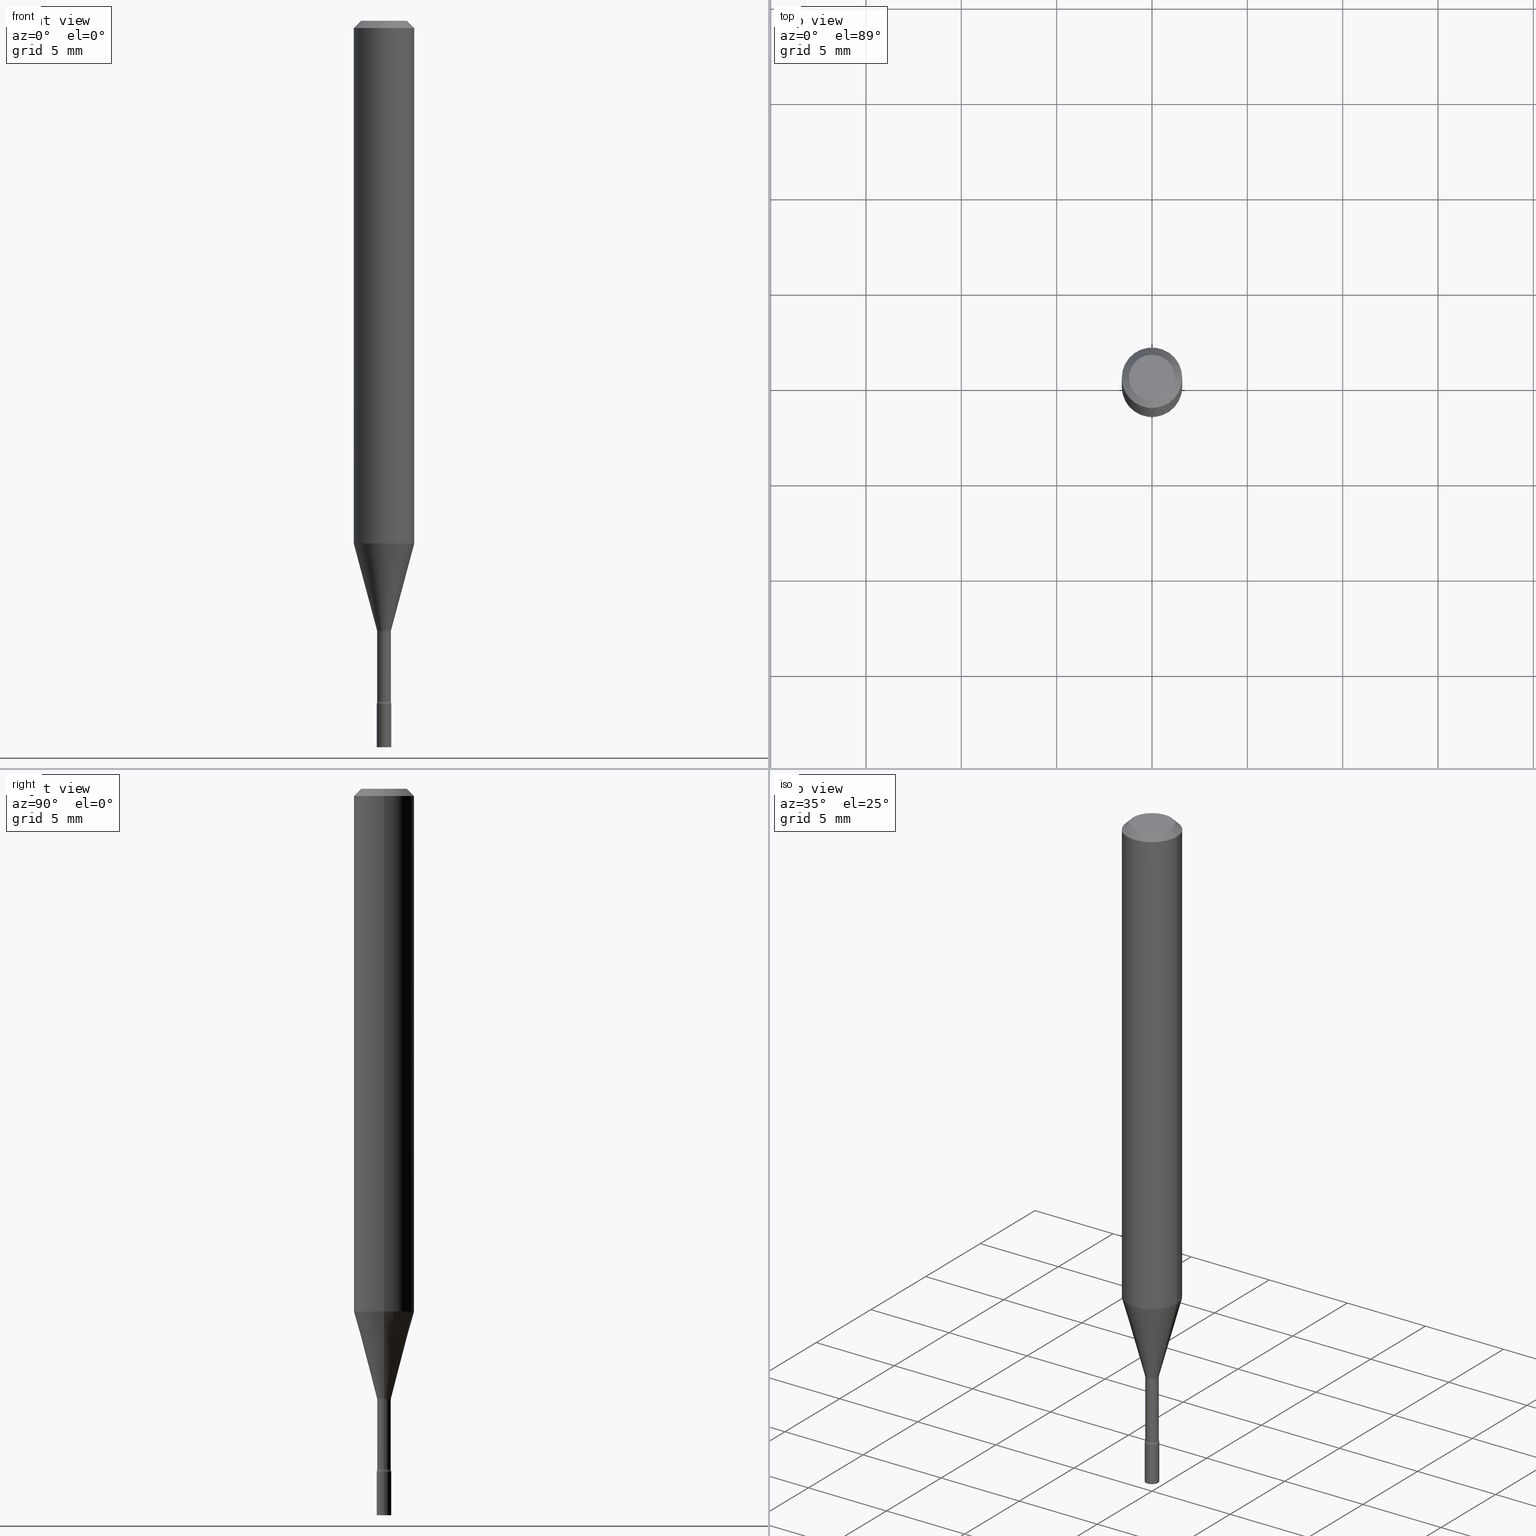
[diagram: canonical four-view strip — front | top / right | iso, engineering-drawing reading convention]
A machine part, canonical four-view strip (front | top / right | iso — engineering-drawing reading convention). The complete STEP part file that produces these views, byte-faithful:
ISO-10303-21;
HEADER;
FILE_DESCRIPTION (( 'STEP AP203' ),
    '1' );
FILE_NAME ('09361.STEP',
    '2024-03-08T23:20:44',
    ( '' ),
    ( '' ),
    'SwSTEP 2.0',
    'SolidWorks 2023',
    '' );
FILE_SCHEMA (( 'CONFIG_CONTROL_DESIGN' ));
ENDSEC;

DATA;
#1 = DIRECTION ( 'NONE',  ( 1.000000000000000000, -6.982962677686267499E-15, 4.876176775795936353E-29 ) ) ;
#2 = PERSON_AND_ORGANIZATION ( #91, #43 ) ;
#3 = CC_DESIGN_DATE_AND_TIME_ASSIGNMENT ( #175, #418, ( #183 ) ) ;
#4 = DIRECTION ( 'NONE',  ( -1.000000000000000000, 6.982962677686266711E-15, 0.000000000000000000 ) ) ;
#5 = DIRECTION ( 'NONE',  ( 1.000000000000000000, -6.982962677686268288E-15, 0.000000000000000000 ) ) ;
#6 = AXIS2_PLACEMENT_3D ( 'NONE', #491, #177, #458 ) ;
#7 = AXIS2_PLACEMENT_3D ( 'NONE', #433, #67, #205 ) ;
#8 = LINE ( 'NONE', #221, #448 ) ;
#9 = EDGE_CURVE ( 'NONE', #19, #154, #163, .T. ) ;
#10 = CARTESIAN_POINT ( 'NONE',  ( -0.02910000000000001821, -4.698352688689978751E-15, -1.404882383367230592 ) ) ;
#11 = EDGE_LOOP ( 'NONE', ( #385, #139 ) ) ;
#12 = AXIS2_PLACEMENT_3D ( 'NONE', #364, #518, #119 ) ;
#13 = LOCAL_TIME ( 18, 20, 44.00000000000000000, #86 ) ;
#14 = CARTESIAN_POINT ( 'NONE',  ( 0.000000000000000000, 0.000000000000000000, 0.000000000000000000 ) ) ;
#15 = CARTESIAN_POINT ( 'NONE',  ( 1.047444401653284739E-16, 0.01499999999999507630, -1.409999999999999920 ) ) ;
#16 = ORIENTED_EDGE ( 'NONE', *, *, #251, .F. ) ;
#17 = CYLINDRICAL_SURFACE ( 'NONE', #475, 0.06250000000000000000 ) ;
#18 = EDGE_CURVE ( 'NONE', #154, #515, #260, .T. ) ;
#19 = VERTEX_POINT ( 'NONE', #125 ) ;
#20 = CONICAL_SURFACE ( 'NONE', #295, 0.01461111260566397979, 0.2617993877991497964 ) ;
#21 = DIRECTION ( 'NONE',  ( 2.438088387897960049E-29, -3.491481338843145188E-15, -1.000000000000000000 ) ) ;
#22 = ORIENTED_EDGE ( 'NONE', *, *, #66, .F. ) ;
#23 = DIRECTION ( 'NONE',  ( -2.445468806185136597E-29, 3.491481338843145583E-15, 1.000000000000000000 ) ) ;
#24 = CARTESIAN_POINT ( 'NONE',  ( 3.668203209277712094E-31, -5.237222008264728876E-17, -0.01500000000000003067 ) ) ;
#25 = AXIS2_PLACEMENT_3D ( 'NONE', #202, #165, #516 ) ;
#26 = DIRECTION ( 'NONE',  ( -2.445468806185136597E-29, 3.491481338843145583E-15, 1.000000000000000000 ) ) ;
#27 = LOCAL_TIME ( 18, 20, 44.00000000000000000, #446 ) ;
#28 = ORIENTED_EDGE ( 'NONE', *, *, #514, .F. ) ;
#29 = CARTESIAN_POINT ( 'NONE',  ( 3.448111016721042669E-29, -4.922988687768835701E-15, -1.409999999999999920 ) ) ;
#30 = ORIENTED_EDGE ( 'NONE', *, *, #171, .F. ) ;
#31 = DIRECTION ( 'NONE',  ( 1.000000000000000000, 0.000000000000000000, 0.000000000000000000 ) ) ;
#32 = DIRECTION ( 'NONE',  ( 7.105427357601001859E-15, 1.000000000000000000, -3.491481338843145583E-15 ) ) ;
#33 = ORIENTED_EDGE ( 'NONE', *, *, #200, .T. ) ;
#34 = ADVANCED_FACE ( 'NONE', ( #492 ), #218, .T. ) ;
#35 = AXIS2_PLACEMENT_3D ( 'NONE', #45, #256, #50 ) ;
#36 = DIRECTION ( 'NONE',  ( 1.000000000000000000, -6.982962677686276966E-15, 0.000000000000000000 ) ) ;
#37 = CIRCLE ( 'NONE', #193, 0.04749999999999999362 ) ;
#38 = ORIENTED_EDGE ( 'NONE', *, *, #497, .T. ) ;
#39 = DATE_AND_TIME ( #249, #27 ) ;
#40 = CYLINDRICAL_SURFACE ( 'NONE', #250, 0.01499999999999999944 ) ;
#41 = DIRECTION ( 'NONE',  ( 1.000000000000000000, -6.982962677686246200E-15, 0.000000000000000000 ) ) ;
#42 = FACE_OUTER_BOUND ( 'NONE', #508, .T. ) ;
#43 = ORGANIZATION ( 'UNSPECIFIED', 'UNSPECIFIED', '' ) ;
#44 = DATE_TIME_ROLE ( 'classification_date' ) ;
#45 = CARTESIAN_POINT ( 'NONE',  ( 3.448111016721042669E-29, -4.922988687768835701E-15, -1.409999999999999920 ) ) ;
#46 = PERSON_AND_ORGANIZATION ( #91, #43 ) ;
#47 = CARTESIAN_POINT ( 'NONE',  ( 0.06250000000000000000, -4.811533449433680977E-16, -0.01500000000000003067 ) ) ;
#48 = CALENDAR_DATE ( 2024, 8, 3 ) ;
#49 = PRODUCT ( '09361', '09361', '', ( #406 ) ) ;
#50 = DIRECTION ( 'NONE',  ( 1.000000000000000000, -6.982962677686265922E-15, 4.876176775795935793E-29 ) ) ;
#51 = MANIFOLD_SOLID_BREP ( 'Body-Move/Copy2[1]', #172 ) ;
#52 = AXIS2_PLACEMENT_3D ( 'NONE', #146, #469, #263 ) ;
#53 = VERTEX_POINT ( 'NONE', #464 ) ;
#54 = CIRCLE ( 'NONE', #387, 0.01499999999999999944 ) ;
#55 = EDGE_CURVE ( 'NONE', #304, #316, #8, .T. ) ;
#56 = DIRECTION ( 'NONE',  ( 7.105427357601001859E-15, 1.000000000000000000, -3.491481338843145583E-15 ) ) ;
#57 = DIRECTION ( 'NONE',  ( -1.000000000000000000, 6.982962677686266711E-15, 0.000000000000000000 ) ) ;
#58 = ORIENTED_EDGE ( 'NONE', *, *, #367, .F. ) ;
#59 = EDGE_LOOP ( 'NONE', ( #470, #297, #336, #112 ) ) ;
#60 = ORIENTED_EDGE ( 'NONE', *, *, #490, .T. ) ;
#61 = CIRCLE ( 'NONE', #350, 0.01499999999999999944 ) ;
#62 = DIRECTION ( 'NONE',  ( 1.000000000000000000, -6.982962677686268288E-15, 0.000000000000000000 ) ) ;
#63 = EDGE_LOOP ( 'NONE', ( #301, #28, #459, #68 ) ) ;
#64 = DIRECTION ( 'NONE',  ( 1.000000000000000000, -6.982962677686268288E-15, 0.000000000000000000 ) ) ;
#65 = ORIENTED_EDGE ( 'NONE', *, *, #18, .F. ) ;
#66 = EDGE_CURVE ( 'NONE', #178, #285, #192, .T. ) ;
#67 = DIRECTION ( 'NONE',  ( -2.445468806185136597E-29, 3.491481338843145583E-15, 1.000000000000000000 ) ) ;
#68 = ORIENTED_EDGE ( 'NONE', *, *, #367, .T. ) ;
#69 = CIRCLE ( 'NONE', #100, 0.01499999999999999944 ) ;
#70 = LINE ( 'NONE', #361, #449 ) ;
#71 = TOROIDAL_SURFACE ( 'NONE', #461, 0.02909999999999999740, 0.01500000000000002373 ) ;
#72 = DIRECTION ( 'NONE',  ( 2.445468806185136597E-29, -3.491481338843145583E-15, -1.000000000000000000 ) ) ;
#73 = VERTEX_POINT ( 'NONE', #380 ) ;
#74 = DIRECTION ( 'NONE',  ( -2.445468806185136597E-29, 3.491481338843145583E-15, 1.000000000000000000 ) ) ;
#75 = ORIENTED_EDGE ( 'NONE', *, *, #151, .F. ) ;
#76 = PERSON_AND_ORGANIZATION ( #91, #43 ) ;
#77 = LINE ( 'NONE', #150, #309 ) ;
#78 = VERTEX_POINT ( 'NONE', #220 ) ;
#79 = VECTOR ( 'NONE', #133, 39.37007874015748143 ) ;
#80 = CARTESIAN_POINT ( 'NONE',  ( 0.000000000000000000, 0.000000000000000000, 0.000000000000000000 ) ) ;
#81 = CIRCLE ( 'NONE', #217, 0.01499999999999998036 ) ;
#82 = CARTESIAN_POINT ( 'NONE',  ( 0.000000000000000000, 0.000000000000000000, 0.000000000000000000 ) ) ;
#83 = APPROVAL ( #219, 'UNSPECIFIED' ) ;
#84 = LINE ( 'NONE', #47, #79 ) ;
#85 = VECTOR ( 'NONE', #472, 39.37007874015748143 ) ;
#86 = COORDINATED_UNIVERSAL_TIME_OFFSET ( 5, 0, .BEHIND. ) ;
#87 = DIRECTION ( 'NONE',  ( 1.000000000000000000, -6.982962677686246200E-15, 0.000000000000000000 ) ) ;
#88 = EDGE_CURVE ( 'NONE', #439, #381, #318, .T. ) ;
#89 = CYLINDRICAL_SURFACE ( 'NONE', #6, 0.01410000000000002050 ) ;
#90 = CC_DESIGN_PERSON_AND_ORGANIZATION_ASSIGNMENT ( #2, #413, ( #183 ) ) ;
#91 = PERSON ( 'UNSPECIFIED', 'UNSPECIFIED', 'UNSPECIFIED', ('UNSPECIFIED'), ('UNSPECIFIED'), ('UNSPECIFIED') ) ;
#92 = DIRECTION ( 'NONE',  ( -2.445468806185136877E-29, 3.491481338843145188E-15, 1.000000000000000000 ) ) ;
#93 = CONICAL_SURFACE ( 'NONE', #455, 0.06250000000000000000, 0.7853981633974483900 ) ;
#94 = APPROVAL ( #129, 'UNSPECIFIED' ) ;
#95 = FACE_OUTER_BOUND ( 'NONE', #359, .T. ) ;
#96 = ORIENTED_EDGE ( 'NONE', *, *, #261, .F. ) ;
#97 = DIRECTION ( 'NONE',  ( 1.000000000000000000, -6.982962677686258033E-15, 4.883557194083110098E-29 ) ) ;
#98 = EDGE_LOOP ( 'NONE', ( #228, #229, #186, #103 ) ) ;
#99 = CARTESIAN_POINT ( 'NONE',  ( 0.01410000000000002050, -9.845977375537649906E-17, 6.875409253872279620E-31 ) ) ;
#100 = AXIS2_PLACEMENT_3D ( 'NONE', #414, #394, #62 ) ;
#101 = CIRCLE ( 'NONE', #436, 0.01500000000000001853 ) ;
#102 = FACE_OUTER_BOUND ( 'NONE', #137, .T. ) ;
#103 = ORIENTED_EDGE ( 'NONE', *, *, #490, .F. ) ;
#104 = CARTESIAN_POINT ( 'NONE',  ( 3.435596044883590272E-29, -4.905120624796168010E-15, -1.404882383367230592 ) ) ;
#105 = VERTEX_POINT ( 'NONE', #335 ) ;
#106 =( NAMED_UNIT ( * ) SI_UNIT ( $, .STERADIAN. ) SOLID_ANGLE_UNIT ( ) );
#107 = CARTESIAN_POINT ( 'NONE',  ( 3.448111016721042669E-29, -4.922988687768835701E-15, -1.409999999999999920 ) ) ;
#108 = ORIENTED_EDGE ( 'NONE', *, *, #392, .F. ) ;
#109 = AXIS2_PLACEMENT_3D ( 'NONE', #191, #21, #187 ) ;
#110 = APPROVAL_PERSON_ORGANIZATION ( #46, #83, #291 ) ;
#111 = FACE_OUTER_BOUND ( 'NONE', #488, .T. ) ;
#112 = ORIENTED_EDGE ( 'NONE', *, *, #391, .F. ) ;
#113 = APPLICATION_PROTOCOL_DEFINITION ( 'international standard', 'config_control_design', 1994, #487 ) ;
#114 = ADVANCED_FACE ( 'NONE', ( #95 ), #496, .T. ) ;
#115 = DIRECTION ( 'NONE',  ( -2.445468806185136597E-29, 3.491481338843145583E-15, 1.000000000000000000 ) ) ;
#116 = EDGE_LOOP ( 'NONE', ( #155, #142, #149, #65 ) ) ;
#117 = DIRECTION ( 'NONE',  ( -0.2588190451025211281, 5.211531920934548675E-15, 0.9659258262890682012 ) ) ;
#118 = APPROVAL_DATE_TIME ( #292, #94 ) ;
#119 = DIRECTION ( 'NONE',  ( -1.000000000000000000, 6.982962677686265922E-15, -4.876176775795935793E-29 ) ) ;
#120 = AXIS2_PLACEMENT_3D ( 'NONE', #158, #352, #397 ) ;
#121 = SECURITY_CLASSIFICATION ( '', '', #215 ) ;
#122 = COORDINATED_UNIVERSAL_TIME_OFFSET ( 5, 0, .BEHIND. ) ;
#123 = PERSON_AND_ORGANIZATION ( #91, #43 ) ;
#124 = ORIENTED_EDGE ( 'NONE', *, *, #306, .F. ) ;
#125 = CARTESIAN_POINT ( 'NONE',  ( 0.04749999999999999362, -4.035134999187579609E-16, -2.891391092786643317E-17 ) ) ;
#126 = EDGE_CURVE ( 'NONE', #19, #78, #84, .T. ) ;
#127 = CARTESIAN_POINT ( 'NONE',  ( -0.06250000000000000000, 3.840629472727443437E-16, -0.01500000000000003067 ) ) ;
#128 = CIRCLE ( 'NONE', #405, 0.01499999999999999944 ) ;
#129 = APPROVAL_STATUS ( 'not_yet_approved' ) ;
#130 = ADVANCED_FACE ( 'NONE', ( #257 ), #227, .F. ) ;
#131 = VERTEX_POINT ( 'NONE', #457 ) ;
#132 = DIRECTION ( 'NONE',  ( 1.000000000000000000, -6.982962677686266711E-15, 4.876176775795935793E-29 ) ) ;
#133 = DIRECTION ( 'NONE',  ( 0.7071067811865475727, -7.319954787623256045E-15, -0.7071067811865474617 ) ) ;
#134 = CARTESIAN_POINT ( 'NONE',  ( -0.06250000000000000000, 4.440892098500626162E-16, -3.074334431409316114E-30 ) ) ;
#135 = VECTOR ( 'NONE', #329, 39.37007874015748143 ) ;
#136 = AXIS2_PLACEMENT_3D ( 'NONE', #303, #74, #435 ) ;
#137 = EDGE_LOOP ( 'NONE', ( #498, #239, #38, #345 ) ) ;
#138 = DIRECTION ( 'NONE',  ( -2.445468806185136597E-29, 3.491481338843145583E-15, 1.000000000000000000 ) ) ;
#139 = ORIENTED_EDGE ( 'NONE', *, *, #9, .T. ) ;
#140 = DIRECTION ( 'NONE',  ( 1.000000000000000000, -6.982962677686266711E-15, 4.876176775795935793E-29 ) ) ;
#141 = DIRECTION ( 'NONE',  ( 1.000000000000000000, -6.982962677686260400E-15, 4.883557194083110659E-29 ) ) ;
#142 = ORIENTED_EDGE ( 'NONE', *, *, #126, .T. ) ;
#143 = DESIGN_CONTEXT ( 'detailed design', #487, 'design' ) ;
#144 = AXIS2_PLACEMENT_3D ( 'NONE', #343, #23, #468 ) ;
#145 = PRODUCT_DEFINITION_FORMATION_WITH_SPECIFIED_SOURCE ( 'ANY', '', #49, .NOT_KNOWN. ) ;
#146 = CARTESIAN_POINT ( 'NONE',  ( 3.435596044883591393E-29, -4.905120624796168799E-15, -1.404882383367230814 ) ) ;
#147 = ORIENTED_EDGE ( 'NONE', *, *, #306, .T. ) ;
#148 = DIRECTION ( 'NONE',  ( -2.445468806185136597E-29, 3.491481338843145583E-15, 1.000000000000000000 ) ) ;
#149 = ORIENTED_EDGE ( 'NONE', *, *, #485, .T. ) ;
#150 = CARTESIAN_POINT ( 'NONE',  ( -0.01461111260566397979, -4.288788293295477803E-15, -1.258092501787273276 ) ) ;
#151 = EDGE_CURVE ( 'NONE', #53, #304, #509, .T. ) ;
#152 = PERSON_AND_ORGANIZATION_ROLE ( 'design_owner' ) ;
#153 = CARTESIAN_POINT ( 'NONE',  ( 3.668203209277712094E-31, -5.237222008264728876E-17, -0.01500000000000003067 ) ) ;
#154 = VERTEX_POINT ( 'NONE', #375 ) ;
#155 = ORIENTED_EDGE ( 'NONE', *, *, #9, .F. ) ;
#156 = DIRECTION ( 'NONE',  ( -2.445468806185136877E-29, 3.491481338843145188E-15, 1.000000000000000000 ) ) ;
#157 = CARTESIAN_POINT ( 'NONE',  ( 0.06250000000000001388, -4.205030983986081256E-15, -1.079368740913666747 ) ) ;
#158 = CARTESIAN_POINT ( 'NONE',  ( 0.02909999999999999740, -4.609365634441111959E-15, -1.261974787463811198 ) ) ;
#159 = DIRECTION ( 'NONE',  ( -2.445468806185136597E-29, 3.491481338843145583E-15, 1.000000000000000000 ) ) ;
#160 = EDGE_CURVE ( 'NONE', #53, #73, #173, .T. ) ;
#161 = ADVANCED_FACE ( 'NONE', ( #42 ), #89, .T. ) ;
#162 = CALENDAR_DATE ( 2024, 8, 3 ) ;
#163 = CIRCLE ( 'NONE', #395, 0.04749999999999999362 ) ;
#164 = VECTOR ( 'NONE', #511, 39.37007874015748143 ) ;
#165 = DIRECTION ( 'NONE',  ( -2.445468806185136597E-29, 3.491481338843145583E-15, 1.000000000000000000 ) ) ;
#166 =( GEOMETRIC_REPRESENTATION_CONTEXT ( 3 ) GLOBAL_UNCERTAINTY_ASSIGNED_CONTEXT ( ( #370 ) ) GLOBAL_UNIT_ASSIGNED_CONTEXT ( ( #471, #197, #106 ) ) REPRESENTATION_CONTEXT ( 'NONE', 'WORKASPACE' ) );
#167 = DIRECTION ( 'NONE',  ( -2.445468806185136597E-29, 3.491481338843145583E-15, 1.000000000000000000 ) ) ;
#168 = SHAPE_DEFINITION_REPRESENTATION ( #179, #445 ) ;
#169 = DIRECTION ( 'NONE',  ( 1.000000000000000000, -6.982962677686267499E-15, 4.876681293081646444E-29 ) ) ;
#170 = COORDINATED_UNIVERSAL_TIME_OFFSET ( 5, 0, .BEHIND. ) ;
#171 = EDGE_CURVE ( 'NONE', #506, #515, #293, .T. ) ;
#172 = CLOSED_SHELL ( 'NONE', ( #373, #114, #429, #453 ) ) ;
#173 = LINE ( 'NONE', #410, #181 ) ;
#174 = CONICAL_SURFACE ( 'NONE', #426, 0.01461111260566397979, 0.2617993877991497964 ) ;
#175 = DATE_AND_TIME ( #259, #206 ) ;
#176 = EDGE_LOOP ( 'NONE', ( #355, #246, #310, #16 ) ) ;
#177 = DIRECTION ( 'NONE',  ( -2.445468806185136597E-29, 3.491481338843145583E-15, 1.000000000000000000 ) ) ;
#178 = VERTEX_POINT ( 'NONE', #300 ) ;
#179 = PRODUCT_DEFINITION_SHAPE ( 'NONE', 'NONE',  #183 ) ;
#180 = FACE_OUTER_BOUND ( 'NONE', #431, .T. ) ;
#181 = VECTOR ( 'NONE', #92, 39.37007874015748143 ) ;
#182 = CIRCLE ( 'NONE', #144, 0.01461111260566397979 ) ;
#183 = PRODUCT_DEFINITION ( 'UNKNOWN', '', #145, #143 ) ;
#184 = VERTEX_POINT ( 'NONE', #454 ) ;
#185 = DIMENSIONAL_EXPONENTS ( 1.000000000000000000, 0.000000000000000000, 0.000000000000000000, 0.000000000000000000, 0.000000000000000000, 0.000000000000000000, 0.000000000000000000 ) ;
#186 = ORIENTED_EDGE ( 'NONE', *, *, #485, .F. ) ;
#187 = DIRECTION ( 'NONE',  ( -1.000000000000000000, 6.982962677686265922E-15, -4.876176775795935793E-29 ) ) ;
#188 = EDGE_LOOP ( 'NONE', ( #390, #75 ) ) ;
#189 = ORIENTED_EDGE ( 'NONE', *, *, #415, .F. ) ;
#190 = LINE ( 'NONE', #466, #164 ) ;
#191 = CARTESIAN_POINT ( 'NONE',  ( 3.316907271900976096E-16, 0.04749999999999999362, -1.803023190589839165E-16 ) ) ;
#192 = CIRCLE ( 'NONE', #238, 0.01461111260566397979 ) ;
#193 = AXIS2_PLACEMENT_3D ( 'NONE', #363, #476, #517 ) ;
#194 = LENGTH_MEASURE_WITH_UNIT ( LENGTH_MEASURE( 0.02539999999999999897 ), #275 );
#195 = DIRECTION ( 'NONE',  ( -2.445468806185136597E-29, 3.491481338843145583E-15, 1.000000000000000000 ) ) ;
#196 = EDGE_LOOP ( 'NONE', ( #495, #108, #264, #199 ) ) ;
#197 =( NAMED_UNIT ( * ) PLANE_ANGLE_UNIT ( ) SI_UNIT ( $, .RADIAN. ) );
#198 = FACE_OUTER_BOUND ( 'NONE', #116, .T. ) ;
#199 = ORIENTED_EDGE ( 'NONE', *, *, #357, .T. ) ;
#200 = EDGE_CURVE ( 'NONE', #381, #351, #69, .T. ) ;
#201 = APPLICATION_PROTOCOL_DEFINITION ( 'international standard', 'config_control_design', 1994, #305 ) ;
#202 = CARTESIAN_POINT ( 'NONE',  ( 2.639562586275698746E-29, -3.768595816630689586E-15, -1.079368740913666747 ) ) ;
#203 = ORIENTED_EDGE ( 'NONE', *, *, #151, .T. ) ;
#204 = AXIS2_PLACEMENT_3D ( 'NONE', #14, #419, #262 ) ;
#205 = DIRECTION ( 'NONE',  ( 1.000000000000000000, -6.982962677686266711E-15, 0.000000000000000000 ) ) ;
#206 = LOCAL_TIME ( 18, 20, 44.00000000000000000, #122 ) ;
#207 = DIRECTION ( 'NONE',  ( -2.445468806185136597E-29, 3.491481338843145583E-15, 1.000000000000000000 ) ) ;
#208 = APPROVAL_DATE_TIME ( #39, #299 ) ;
#209 = ADVANCED_FACE ( 'NONE', ( #265 ), #216, .F. ) ;
#210 = FACE_OUTER_BOUND ( 'NONE', #282, .T. ) ;
#211 = PERSON_AND_ORGANIZATION ( #91, #43 ) ;
#212 = CC_DESIGN_PERSON_AND_ORGANIZATION_ASSIGNMENT ( #123, #222, ( #145 ) ) ;
#213 = ADVANCED_FACE ( 'NONE', ( #232 ), #404, .T. ) ;
#214 = DIRECTION ( 'NONE',  ( -2.445468806185136597E-29, 3.491481338843145583E-15, 1.000000000000000000 ) ) ;
#215 = SECURITY_CLASSIFICATION_LEVEL ( 'unclassified' ) ;
#216 = TOROIDAL_SURFACE ( 'NONE', #501, 0.02910000000000001821, 0.01499999999999998036 ) ;
#217 = AXIS2_PLACEMENT_3D ( 'NONE', #247, #403, #36 ) ;
#218 = CYLINDRICAL_SURFACE ( 'NONE', #204, 0.01410000000000002050 ) ;
#219 = APPROVAL_STATUS ( 'not_yet_approved' ) ;
#220 = CARTESIAN_POINT ( 'NONE',  ( 0.06250000000000000000, -4.888073874380389458E-16, -0.01500000000000003067 ) ) ;
#221 = CARTESIAN_POINT ( 'NONE',  ( 0.01499999999999999944, -1.047444401652940105E-16, 7.314265163693904390E-31 ) ) ;
#222 = PERSON_AND_ORGANIZATION_ROLE ( 'creator' ) ;
#223 = AXIS2_PLACEMENT_3D ( 'NONE', #10, #56, #334 ) ;
#224 = DIRECTION ( 'NONE',  ( -2.445468806185136597E-29, 3.491481338843145583E-15, 1.000000000000000000 ) ) ;
#225 = AXIS2_PLACEMENT_3D ( 'NONE', #29, #477, #5 ) ;
#226 = CC_DESIGN_APPROVAL ( #94, ( #121 ) ) ;
#227 = PLANE ( 'NONE',  #277 ) ;
#228 = ORIENTED_EDGE ( 'NONE', *, *, #440, .T. ) ;
#229 = ORIENTED_EDGE ( 'NONE', *, *, #171, .T. ) ;
#230 = FACE_OUTER_BOUND ( 'NONE', #98, .T. ) ;
#231 = EDGE_LOOP ( 'NONE', ( #234, #203, #271, #189 ) ) ;
#232 = FACE_OUTER_BOUND ( 'NONE', #63, .T. ) ;
#233 = CIRCLE ( 'NONE', #25, 0.06250000000000000000 ) ;
#234 = ORIENTED_EDGE ( 'NONE', *, *, #160, .F. ) ;
#235 = CARTESIAN_POINT ( 'NONE',  ( 3.668203209277704895E-29, -5.237222008264718177E-15, -1.500000000000000222 ) ) ;
#236 = DIRECTION ( 'NONE',  ( 1.000000000000000000, -6.982962677686260400E-15, 4.883557194083110659E-29 ) ) ;
#237 = DIRECTION ( 'NONE',  ( -2.445468806185136597E-29, 3.491481338843145583E-15, 1.000000000000000000 ) ) ;
#238 = AXIS2_PLACEMENT_3D ( 'NONE', #456, #167, #87 ) ;
#239 = ORIENTED_EDGE ( 'NONE', *, *, #284, .F. ) ;
#240 = TOROIDAL_SURFACE ( 'NONE', #412, 0.02910000000000001821, 0.01499999999999998036 ) ;
#241 = CARTESIAN_POINT ( 'NONE',  ( -0.06250000000000000000, -1.466394808506605914E-15, -0.01500000000000003067 ) ) ;
#242 = DIRECTION ( 'NONE',  ( 1.000000000000000000, -6.982962677686267499E-15, 4.876176775795936353E-29 ) ) ;
#243 = ORIENTED_EDGE ( 'NONE', *, *, #460, .F. ) ;
#244 = DIRECTION ( 'NONE',  ( 1.000000000000000000, -6.982962677686242256E-15, 0.000000000000000000 ) ) ;
#245 = CC_DESIGN_PERSON_AND_ORGANIZATION_ASSIGNMENT ( #211, #253, ( #121 ) ) ;
#246 = ORIENTED_EDGE ( 'NONE', *, *, #66, .T. ) ;
#247 = CARTESIAN_POINT ( 'NONE',  ( 0.02910000000000001821, -5.108324838716837336E-15, -1.404882383367230592 ) ) ;
#248 = AXIS2_PLACEMENT_3D ( 'NONE', #505, #502, #97 ) ;
#249 = CALENDAR_DATE ( 2024, 8, 3 ) ;
#250 = AXIS2_PLACEMENT_3D ( 'NONE', #401, #207, #1 ) ;
#251 = EDGE_CURVE ( 'NONE', #506, #465, #484, .T. ) ;
#252 = DIRECTION ( 'NONE',  ( -2.445468806185136597E-29, 3.491481338843145583E-15, 1.000000000000000000 ) ) ;
#253 = PERSON_AND_ORGANIZATION_ROLE ( 'classification_officer' ) ;
#254 = CIRCLE ( 'NONE', #386, 0.01410000000000000142 ) ;
#255 = ADVANCED_FACE ( 'NONE', ( #432 ), #507, .F. ) ;
#256 = DIRECTION ( 'NONE',  ( -2.438088387897960049E-29, 3.491481338843145188E-15, 1.000000000000000000 ) ) ;
#257 = FACE_OUTER_BOUND ( 'NONE', #321, .T. ) ;
#258 = ADVANCED_FACE ( 'NONE', ( #102 ), #473, .F. ) ;
#259 = CALENDAR_DATE ( 2024, 8, 3 ) ;
#260 = LINE ( 'NONE', #127, #135 ) ;
#261 = EDGE_CURVE ( 'NONE', #131, #105, #254, .T. ) ;
#262 = DIRECTION ( 'NONE',  ( 1.000000000000000000, -6.982962677686266711E-15, 4.876176775795935793E-29 ) ) ;
#263 = DIRECTION ( 'NONE',  ( 1.000000000000000000, -6.982962677686293532E-15, 0.000000000000000000 ) ) ;
#264 = ORIENTED_EDGE ( 'NONE', *, *, #460, .T. ) ;
#265 = FACE_OUTER_BOUND ( 'NONE', #196, .T. ) ;
#266 = ORIENTED_EDGE ( 'NONE', *, *, #268, .F. ) ;
#267 = CARTESIAN_POINT ( 'NONE',  ( 3.435596044883590272E-29, -4.905120624796168010E-15, -1.404882383367230592 ) ) ;
#268 = EDGE_CURVE ( 'NONE', #439, #184, #376, .T. ) ;
#269 = CIRCLE ( 'NONE', #136, 0.06250000000000000000 ) ;
#270 = CARTESIAN_POINT ( 'NONE',  ( 0.01499999999999999944, -5.341966448430012335E-15, -1.500000000000000222 ) ) ;
#271 = ORIENTED_EDGE ( 'NONE', *, *, #55, .T. ) ;
#272 = EDGE_CURVE ( 'NONE', #304, #53, #61, .T. ) ;
#273 = APPROVAL_STATUS ( 'not_yet_approved' ) ;
#274 = DIRECTION ( 'NONE',  ( 1.000000000000000000, -6.982962677686262766E-15, 0.000000000000000000 ) ) ;
#275 =( LENGTH_UNIT ( ) NAMED_UNIT ( * ) SI_UNIT ( $, .METRE. ) );
#276 = DIRECTION ( 'NONE',  ( -2.445468806185136597E-29, 3.491481338843145583E-15, 1.000000000000000000 ) ) ;
#277 = AXIS2_PLACEMENT_3D ( 'NONE', #15, #499, #328 ) ;
#278 = ORIENTED_EDGE ( 'NONE', *, *, #348, .F. ) ;
#279 = CIRCLE ( 'NONE', #420, 0.01410000000000003785 ) ;
#280 = CARTESIAN_POINT ( 'NONE',  ( 0.000000000000000000, 0.000000000000000000, 0.000000000000000000 ) ) ;
#281 = FACE_OUTER_BOUND ( 'NONE', #231, .T. ) ;
#282 = EDGE_LOOP ( 'NONE', ( #504, #438, #313, #399 ) ) ;
#283 = DIRECTION ( 'NONE',  ( 1.000000000000000000, -6.982962677686293532E-15, 0.000000000000000000 ) ) ;
#284 = EDGE_CURVE ( 'NONE', #285, #178, #182, .T. ) ;
#285 = VERTEX_POINT ( 'NONE', #430 ) ;
#286 = APPROVAL_ROLE ( '' ) ;
#287 = CYLINDRICAL_SURFACE ( 'NONE', #493, 0.06250000000000000000 ) ;
#288 = AXIS2_PLACEMENT_3D ( 'NONE', #416, #224, #298 ) ;
#289 = PERSON_AND_ORGANIZATION_ROLE ( 'design_supplier' ) ;
#290 = CARTESIAN_POINT ( 'NONE',  ( -0.01499999999999998730, -4.816407277404820579E-15, -1.409999999999999920 ) ) ;
#291 = APPROVAL_ROLE ( '' ) ;
#292 = DATE_AND_TIME ( #162, #428 ) ;
#293 = LINE ( 'NONE', #134, #331 ) ;
#294 = DATE_AND_TIME ( #365, #325 ) ;
#295 = AXIS2_PLACEMENT_3D ( 'NONE', #312, #148, #467 ) ;
#296 = DIRECTION ( 'NONE',  ( -2.445468806185136877E-29, 3.491481338843145188E-15, 1.000000000000000000 ) ) ;
#297 = ORIENTED_EDGE ( 'NONE', *, *, #422, .T. ) ;
#298 = DIRECTION ( 'NONE',  ( 1.000000000000000000, -6.982962677686268288E-15, 0.000000000000000000 ) ) ;
#299 = APPROVAL ( #273, 'UNSPECIFIED' ) ;
#300 = CARTESIAN_POINT ( 'NONE',  ( -0.01461111260566397979, -3.806647450038052387E-15, -1.258092501787273276 ) ) ;
#301 = ORIENTED_EDGE ( 'NONE', *, *, #126, .F. ) ;
#302 = PRODUCT_RELATED_PRODUCT_CATEGORY ( 'detail', '', ( #49 ) ) ;
#303 = CARTESIAN_POINT ( 'NONE',  ( 3.668203209277712094E-31, -5.237222008264728876E-17, -0.01500000000000003067 ) ) ;
#304 = VERTEX_POINT ( 'NONE', #270 ) ;
#305 = APPLICATION_CONTEXT ( 'configuration controlled 3d designs of mechanical parts and assemblies' ) ;
#306 = EDGE_CURVE ( 'NONE', #439, #105, #190, .T. ) ;
#307 = FACE_OUTER_BOUND ( 'NONE', #176, .T. ) ;
#308 = CARTESIAN_POINT ( 'NONE',  ( 3.448111016721042669E-29, -4.922988687768835701E-15, -1.409999999999999920 ) ) ;
#309 = VECTOR ( 'NONE', #117, 39.37007874015748143 ) ;
#310 = ORIENTED_EDGE ( 'NONE', *, *, #391, .T. ) ;
#311 = APPROVAL_PERSON_ORGANIZATION ( #489, #94, #482 ) ;
#312 = CARTESIAN_POINT ( 'NONE',  ( 3.076625968416195482E-29, -4.392606492528752047E-15, -1.258092501787273276 ) ) ;
#313 = ORIENTED_EDGE ( 'NONE', *, *, #402, .F. ) ;
#314 = CARTESIAN_POINT ( 'NONE',  ( -0.06250000000000001388, -3.324506606780626970E-15, -1.079368740913666747 ) ) ;
#315 = LINE ( 'NONE', #99, #85 ) ;
#316 = VERTEX_POINT ( 'NONE', #383 ) ;
#317 = DIRECTION ( 'NONE',  ( 1.000000000000000000, -6.982962677686268288E-15, 0.000000000000000000 ) ) ;
#318 = CIRCLE ( 'NONE', #223, 0.01499999999999998036 ) ;
#319 = VECTOR ( 'NONE', #323, 39.37007874015748143 ) ;
#320 = CARTESIAN_POINT ( 'NONE',  ( 3.435596044883591393E-29, -4.905120624796168799E-15, -1.404882383367230814 ) ) ;
#321 = EDGE_LOOP ( 'NONE', ( #478, #500 ) ) ;
#322 = FACE_OUTER_BOUND ( 'NONE', #369, .T. ) ;
#323 = DIRECTION ( 'NONE',  ( 0.2588190451025211281, 1.565188264969623940E-15, 0.9659258262890682012 ) ) ;
#324 = AXIS2_PLACEMENT_3D ( 'NONE', #425, #427, #274 ) ;
#325 = LOCAL_TIME ( 18, 20, 44.00000000000000000, #170 ) ;
#326 = DIRECTION ( 'NONE',  ( -1.000000000000000000, 7.105427357601014480E-15, 0.000000000000000000 ) ) ;
#327 = ADVANCED_FACE ( 'NONE', ( #230 ), #17, .T. ) ;
#328 = DIRECTION ( 'NONE',  ( 1.000000000000000000, -6.982962677686265922E-15, 4.876176775795935793E-29 ) ) ;
#329 = DIRECTION ( 'NONE',  ( -0.7071067811865475727, 2.468850131082257455E-15, -0.7071067811865474617 ) ) ;
#330 = PERSON_AND_ORGANIZATION ( #91, #43 ) ;
#331 = VECTOR ( 'NONE', #421, 39.37007874015748143 ) ;
#332 = APPROVAL_PERSON_ORGANIZATION ( #76, #299, #286 ) ;
#333 = ADVANCED_FACE ( 'NONE', ( #180 ), #240, .F. ) ;
#334 = DIRECTION ( 'NONE',  ( -1.000000000000000000, 7.105427357601000281E-15, 0.000000000000000000 ) ) ;
#335 = CARTESIAN_POINT ( 'NONE',  ( -0.01410000000000000142, -4.555454496916130791E-15, -1.261974787463811198 ) ) ;
#336 = ORIENTED_EDGE ( 'NONE', *, *, #440, .F. ) ;
#337 = ORIENTED_EDGE ( 'NONE', *, *, #88, .T. ) ;
#338 = ADVANCED_FACE ( 'NONE', ( #307 ), #20, .T. ) ;
#339 = ORIENTED_EDGE ( 'NONE', *, *, #497, .F. ) ;
#340 = AXIS2_PLACEMENT_3D ( 'NONE', #82, #214, #242 ) ;
#341 = CARTESIAN_POINT ( 'NONE',  ( 0.01499999999999998730, -5.027733127934128282E-15, -1.409999999999999920 ) ) ;
#342 = ORIENTED_EDGE ( 'NONE', *, *, #402, .T. ) ;
#343 = CARTESIAN_POINT ( 'NONE',  ( 3.076625968416195482E-29, -4.392606492528752047E-15, -1.258092501787273276 ) ) ;
#344 = ORIENTED_EDGE ( 'NONE', *, *, #348, .T. ) ;
#345 = ORIENTED_EDGE ( 'NONE', *, *, #261, .T. ) ;
#346 = CC_DESIGN_PERSON_AND_ORGANIZATION_ASSIGNMENT ( #479, #152, ( #49 ) ) ;
#347 = DIRECTION ( 'NONE',  ( 1.000000000000000000, -6.982962677686268288E-15, 0.000000000000000000 ) ) ;
#348 = EDGE_CURVE ( 'NONE', #184, #131, #315, .T. ) ;
#349 = DIRECTION ( 'NONE',  ( 1.000000000000000000, -6.982962677686242256E-15, 0.000000000000000000 ) ) ;
#350 = AXIS2_PLACEMENT_3D ( 'NONE', #235, #389, #64 ) ;
#351 = VERTEX_POINT ( 'NONE', #341 ) ;
#352 = DIRECTION ( 'NONE',  ( -6.982962677686266711E-15, -1.000000000000000000, 3.491481338843145583E-15 ) ) ;
#353 = CARTESIAN_POINT ( 'NONE',  ( 0.000000000000000000, 0.000000000000000000, 0.000000000000000000 ) ) ;
#354 = CC_DESIGN_DATE_AND_TIME_ASSIGNMENT ( #294, #44, ( #121 ) ) ;
#355 = ORIENTED_EDGE ( 'NONE', *, *, #422, .F. ) ;
#356 = CARTESIAN_POINT ( 'NONE',  ( -0.01410000000000003785, -4.810670688229407621E-15, -1.404882383367230814 ) ) ;
#357 = EDGE_CURVE ( 'NONE', #351, #381, #128, .T. ) ;
#358 = PLANE ( 'NONE',  #12 ) ;
#359 = EDGE_LOOP ( 'NONE', ( #342, #424 ) ) ;
#360 = CIRCLE ( 'NONE', #225, 0.01499999999999999944 ) ;
#361 = CARTESIAN_POINT ( 'NONE',  ( 0.06250000000000000000, -4.364351673553916694E-16, 3.047610484872459871E-30 ) ) ;
#362 = DIRECTION ( 'NONE',  ( -2.445468806185136597E-29, 3.491481338843145583E-15, 1.000000000000000000 ) ) ;
#363 = CARTESIAN_POINT ( 'NONE',  ( 7.070806723891919892E-46, -1.009523804376275185E-31, -2.891391092786900313E-17 ) ) ;
#364 = CARTESIAN_POINT ( 'NONE',  ( 1.047444401653306802E-16, 0.01499999999999476231, -1.500000000000000222 ) ) ;
#365 = CALENDAR_DATE ( 2024, 8, 3 ) ;
#366 = CARTESIAN_POINT ( 'NONE',  ( 0.01461111260566397979, -4.494635346533574839E-15, -1.258092501787273276 ) ) ;
#367 = EDGE_CURVE ( 'NONE', #515, #78, #269, .T. ) ;
#368 = AXIS2_PLACEMENT_3D ( 'NONE', #280, #400, #31 ) ;
#369 = EDGE_LOOP ( 'NONE', ( #30, #503, #60, #58 ) ) ;
#370 = UNCERTAINTY_MEASURE_WITH_UNIT (LENGTH_MEASURE( 1.000000000000000082E-05 ), #471, 'distance_accuracy_value', 'NONE');
#371 = COORDINATED_UNIVERSAL_TIME_OFFSET ( 5, 0, .BEHIND. ) ;
#372 = DIRECTION ( 'NONE',  ( -2.445468806185136597E-29, 3.491481338843145583E-15, 1.000000000000000000 ) ) ;
#373 = ADVANCED_FACE ( 'NONE', ( #210 ), #450, .T. ) ;
#374 = ADVANCED_FACE ( 'NONE', ( #198 ), #93, .T. ) ;
#375 = CARTESIAN_POINT ( 'NONE',  ( -0.04749999999999999362, 3.578768372314209027E-16, -2.891391092787141902E-17 ) ) ;
#376 = CIRCLE ( 'NONE', #52, 0.01410000000000003785 ) ;
#377 = EDGE_CURVE ( 'NONE', #105, #131, #519, .T. ) ;
#378 = CIRCLE ( 'NONE', #7, 0.06250000000000000000 ) ;
#379 = CARTESIAN_POINT ( 'NONE',  ( 7.070806723891919892E-46, -1.009523804376275185E-31, -2.891391092786900313E-17 ) ) ;
#380 = CARTESIAN_POINT ( 'NONE',  ( -0.01499999999999999944, -4.973523937652761422E-15, -1.409999999999999920 ) ) ;
#381 = VERTEX_POINT ( 'NONE', #290 ) ;
#382 = ORIENTED_EDGE ( 'NONE', *, *, #392, .T. ) ;
#383 = CARTESIAN_POINT ( 'NONE',  ( 0.01499999999999999944, -5.027733127934129860E-15, -1.409999999999999920 ) ) ;
#384 = ADVANCED_FACE ( 'NONE', ( #474 ), #174, .T. ) ;
#385 = ORIENTED_EDGE ( 'NONE', *, *, #514, .T. ) ;
#386 = AXIS2_PLACEMENT_3D ( 'NONE', #423, #195, #349 ) ;
#387 = AXIS2_PLACEMENT_3D ( 'NONE', #107, #362, #317 ) ;
#388 = DIRECTION ( 'NONE',  ( 2.445468806185136597E-29, -3.491481338843145583E-15, -1.000000000000000000 ) ) ;
#389 = DIRECTION ( 'NONE',  ( -2.445468806185136597E-29, 3.491481338843145583E-15, 1.000000000000000000 ) ) ;
#390 = ORIENTED_EDGE ( 'NONE', *, *, #272, .F. ) ;
#391 = EDGE_CURVE ( 'NONE', #285, #465, #441, .T. ) ;
#392 = EDGE_CURVE ( 'NONE', #184, #439, #279, .T. ) ;
#393 = CLOSED_SHELL ( 'NONE', ( #417, #34, #333, #374, #327, #384, #338, #481, #213, #255, #130, #209, #161, #258 ) ) ;
#394 = DIRECTION ( 'NONE',  ( -2.445468806185136597E-29, 3.491481338843145583E-15, 1.000000000000000000 ) ) ;
#395 = AXIS2_PLACEMENT_3D ( 'NONE', #379, #372, #169 ) ;
#396 = ORIENTED_EDGE ( 'NONE', *, *, #434, .T. ) ;
#397 = DIRECTION ( 'NONE',  ( 1.000000000000000000, -6.982962677686259611E-15, 0.000000000000000000 ) ) ;
#398 = CARTESIAN_POINT ( 'NONE',  ( -0.02909999999999999740, -4.199393484414252585E-15, -1.261974787463811198 ) ) ;
#399 = ORIENTED_EDGE ( 'NONE', *, *, #55, .F. ) ;
#400 = DIRECTION ( 'NONE',  ( 0.000000000000000000, 0.000000000000000000, 1.000000000000000000 ) ) ;
#401 = CARTESIAN_POINT ( 'NONE',  ( 0.000000000000000000, 0.000000000000000000, 0.000000000000000000 ) ) ;
#402 = EDGE_CURVE ( 'NONE', #316, #73, #54, .T. ) ;
#403 = DIRECTION ( 'NONE',  ( -6.982962677686266711E-15, -1.000000000000000000, 3.491481338843145583E-15 ) ) ;
#404 = CONICAL_SURFACE ( 'NONE', #411, 0.06250000000000000000, 0.7853981633974483900 ) ;
#405 = AXIS2_PLACEMENT_3D ( 'NONE', #308, #138, #347 ) ;
#406 = MECHANICAL_CONTEXT ( 'NONE', #305, 'mechanical' ) ;
#407 = DIRECTION ( 'NONE',  ( 1.000000000000000000, -6.982962677686258033E-15, 4.883557194083110098E-29 ) ) ;
#408 = MANIFOLD_SOLID_BREP ( 'Body-Move/Copy2[2]', #393 ) ;
#409 = DIRECTION ( 'NONE',  ( -2.445468806185136597E-29, 3.491481338843145583E-15, 1.000000000000000000 ) ) ;
#410 = CARTESIAN_POINT ( 'NONE',  ( -0.01499999999999999944, 1.065814103640150239E-16, -7.378402635382358533E-31 ) ) ;
#411 = AXIS2_PLACEMENT_3D ( 'NONE', #24, #388, #57 ) ;
#412 = AXIS2_PLACEMENT_3D ( 'NONE', #104, #513, #141 ) ;
#413 = PERSON_AND_ORGANIZATION_ROLE ( 'creator' ) ;
#414 = CARTESIAN_POINT ( 'NONE',  ( 3.448111016721042669E-29, -4.922988687768835701E-15, -1.409999999999999920 ) ) ;
#415 = EDGE_CURVE ( 'NONE', #73, #316, #360, .T. ) ;
#416 = CARTESIAN_POINT ( 'NONE',  ( 3.668203209277704895E-29, -5.237222008264718177E-15, -1.500000000000000222 ) ) ;
#417 = ADVANCED_FACE ( 'NONE', ( #111 ), #71, .F. ) ;
#418 = DATE_TIME_ROLE ( 'creation_date' ) ;
#419 = DIRECTION ( 'NONE',  ( -2.445468806185136597E-29, 3.491481338843145583E-15, 1.000000000000000000 ) ) ;
#420 = AXIS2_PLACEMENT_3D ( 'NONE', #320, #276, #283 ) ;
#421 = DIRECTION ( 'NONE',  ( -2.445468806185136877E-29, 3.491481338843145188E-15, 1.000000000000000000 ) ) ;
#422 = EDGE_CURVE ( 'NONE', #178, #506, #77, .T. ) ;
#423 = CARTESIAN_POINT ( 'NONE',  ( 3.086119976934868225E-29, -4.406161420520441844E-15, -1.261974787463811198 ) ) ;
#424 = ORIENTED_EDGE ( 'NONE', *, *, #415, .T. ) ;
#425 = CARTESIAN_POINT ( 'NONE',  ( 2.639562586275698746E-29, -3.768595816630689586E-15, -1.079368740913666747 ) ) ;
#426 = AXIS2_PLACEMENT_3D ( 'NONE', #480, #252, #41 ) ;
#427 = DIRECTION ( 'NONE',  ( -2.445468806185136597E-29, 3.491481338843145583E-15, 1.000000000000000000 ) ) ;
#428 = LOCAL_TIME ( 18, 20, 44.00000000000000000, #371 ) ;
#429 = ADVANCED_FACE ( 'NONE', ( #281 ), #40, .T. ) ;
#430 = CARTESIAN_POINT ( 'NONE',  ( 0.01461111260566397979, -4.494635346533574839E-15, -1.258092501787273276 ) ) ;
#431 = EDGE_LOOP ( 'NONE', ( #266, #337, #33, #243 ) ) ;
#432 = FACE_OUTER_BOUND ( 'NONE', #11, .T. ) ;
#433 = CARTESIAN_POINT ( 'NONE',  ( 3.668203209277712094E-31, -5.237222008264728876E-17, -0.01500000000000003067 ) ) ;
#434 = EDGE_CURVE ( 'NONE', #178, #105, #101, .T. ) ;
#435 = DIRECTION ( 'NONE',  ( 1.000000000000000000, -6.982962677686266711E-15, 0.000000000000000000 ) ) ;
#436 = AXIS2_PLACEMENT_3D ( 'NONE', #398, #32, #326 ) ;
#437 = CC_DESIGN_APPROVAL ( #299, ( #183 ) ) ;
#438 = ORIENTED_EDGE ( 'NONE', *, *, #160, .T. ) ;
#439 = VERTEX_POINT ( 'NONE', #356 ) ;
#440 = EDGE_CURVE ( 'NONE', #465, #506, #233, .T. ) ;
#441 = LINE ( 'NONE', #366, #319 ) ;
#442 = ORIENTED_EDGE ( 'NONE', *, *, #268, .T. ) ;
#443 = CARTESIAN_POINT ( 'NONE',  ( 3.086119976934868225E-29, -4.406161420520441844E-15, -1.261974787463811198 ) ) ;
#444 = ORIENTED_EDGE ( 'NONE', *, *, #377, .F. ) ;
#445 = ADVANCED_BREP_SHAPE_REPRESENTATION ( '09361', ( #51, #408, #368 ), #166 ) ;
#446 = COORDINATED_UNIVERSAL_TIME_OFFSET ( 5, 0, .BEHIND. ) ;
#447 = CARTESIAN_POINT ( 'NONE',  ( 3.086119976934868225E-29, -4.406161420520441844E-15, -1.261974787463811198 ) ) ;
#448 = VECTOR ( 'NONE', #296, 39.37007874015748143 ) ;
#449 = VECTOR ( 'NONE', #156, 39.37007874015748143 ) ;
#450 = CYLINDRICAL_SURFACE ( 'NONE', #340, 0.01499999999999999944 ) ;
#451 = CC_DESIGN_PERSON_AND_ORGANIZATION_ASSIGNMENT ( #330, #289, ( #145 ) ) ;
#452 = DATE_AND_TIME ( #48, #13 ) ;
#453 = ADVANCED_FACE ( 'NONE', ( #483 ), #358, .T. ) ;
#454 = CARTESIAN_POINT ( 'NONE',  ( 0.01410000000000003785, -5.003580398551545544E-15, -1.404882383367230814 ) ) ;
#455 = AXIS2_PLACEMENT_3D ( 'NONE', #153, #72, #4 ) ;
#456 = CARTESIAN_POINT ( 'NONE',  ( 3.076625968416195482E-29, -4.392606492528752047E-15, -1.258092501787273276 ) ) ;
#457 = CARTESIAN_POINT ( 'NONE',  ( 0.01410000000000000142, -4.504621194275817801E-15, -1.261974787463811198 ) ) ;
#458 = DIRECTION ( 'NONE',  ( 1.000000000000000000, -6.982962677686266711E-15, 4.876176775795935793E-29 ) ) ;
#459 = ORIENTED_EDGE ( 'NONE', *, *, #18, .T. ) ;
#460 = EDGE_CURVE ( 'NONE', #184, #351, #81, .T. ) ;
#461 = AXIS2_PLACEMENT_3D ( 'NONE', #443, #409, #407 ) ;
#462 = AXIS2_PLACEMENT_3D ( 'NONE', #447, #115, #244 ) ;
#463 = CC_DESIGN_SECURITY_CLASSIFICATION ( #121, ( #145 ) ) ;
#464 = CARTESIAN_POINT ( 'NONE',  ( -0.01499999999999999944, -4.973523937652761422E-15, -1.500000000000000222 ) ) ;
#465 = VERTEX_POINT ( 'NONE', #157 ) ;
#466 = CARTESIAN_POINT ( 'NONE',  ( -0.01410000000000002050, 1.001865257421742719E-16, -6.935698477259426795E-31 ) ) ;
#467 = DIRECTION ( 'NONE',  ( 1.000000000000000000, -6.982962677686246200E-15, 0.000000000000000000 ) ) ;
#468 = DIRECTION ( 'NONE',  ( 1.000000000000000000, -6.982962677686246200E-15, 0.000000000000000000 ) ) ;
#469 = DIRECTION ( 'NONE',  ( -2.445468806185136597E-29, 3.491481338843145583E-15, 1.000000000000000000 ) ) ;
#470 = ORIENTED_EDGE ( 'NONE', *, *, #284, .T. ) ;
#471 =( CONVERSION_BASED_UNIT ( 'INCH', #194 ) LENGTH_UNIT ( ) NAMED_UNIT ( #185 ) );
#472 = DIRECTION ( 'NONE',  ( -2.445468806185136877E-29, 3.491481338843145188E-15, 1.000000000000000000 ) ) ;
#473 = TOROIDAL_SURFACE ( 'NONE', #248, 0.02909999999999999740, 0.01500000000000002373 ) ;
#474 = FACE_OUTER_BOUND ( 'NONE', #59, .T. ) ;
#475 = AXIS2_PLACEMENT_3D ( 'NONE', #353, #237, #140 ) ;
#476 = DIRECTION ( 'NONE',  ( -2.445468806185136597E-29, 3.491481338843145583E-15, 1.000000000000000000 ) ) ;
#477 = DIRECTION ( 'NONE',  ( -2.445468806185136597E-29, 3.491481338843145583E-15, 1.000000000000000000 ) ) ;
#478 = ORIENTED_EDGE ( 'NONE', *, *, #357, .F. ) ;
#479 = PERSON_AND_ORGANIZATION ( #91, #43 ) ;
#480 = CARTESIAN_POINT ( 'NONE',  ( 3.076625968416195482E-29, -4.392606492528752047E-15, -1.258092501787273276 ) ) ;
#481 = ADVANCED_FACE ( 'NONE', ( #322 ), #287, .T. ) ;
#482 = APPROVAL_ROLE ( '' ) ;
#483 = FACE_OUTER_BOUND ( 'NONE', #188, .T. ) ;
#484 = CIRCLE ( 'NONE', #324, 0.06250000000000000000 ) ;
#485 = EDGE_CURVE ( 'NONE', #78, #515, #378, .T. ) ;
#486 = CC_DESIGN_APPROVAL ( #83, ( #145 ) ) ;
#487 = APPLICATION_CONTEXT ( 'configuration controlled 3d designs of mechanical parts and assemblies' ) ;
#488 = EDGE_LOOP ( 'NONE', ( #22, #396, #512, #339 ) ) ;
#489 = PERSON_AND_ORGANIZATION ( #91, #43 ) ;
#490 = EDGE_CURVE ( 'NONE', #465, #78, #70, .T. ) ;
#491 = CARTESIAN_POINT ( 'NONE',  ( 0.000000000000000000, 0.000000000000000000, 0.000000000000000000 ) ) ;
#492 = FACE_OUTER_BOUND ( 'NONE', #520, .T. ) ;
#493 = AXIS2_PLACEMENT_3D ( 'NONE', #80, #159, #132 ) ;
#494 = APPROVAL_DATE_TIME ( #452, #83 ) ;
#495 = ORIENTED_EDGE ( 'NONE', *, *, #88, .F. ) ;
#496 = PLANE ( 'NONE',  #35 ) ;
#497 = EDGE_CURVE ( 'NONE', #285, #131, #510, .T. ) ;
#498 = ORIENTED_EDGE ( 'NONE', *, *, #434, .F. ) ;
#499 = DIRECTION ( 'NONE',  ( -2.438088387897960049E-29, 3.491481338843145188E-15, 1.000000000000000000 ) ) ;
#500 = ORIENTED_EDGE ( 'NONE', *, *, #200, .F. ) ;
#501 = AXIS2_PLACEMENT_3D ( 'NONE', #267, #26, #236 ) ;
#502 = DIRECTION ( 'NONE',  ( -2.445468806185136597E-29, 3.491481338843145583E-15, 1.000000000000000000 ) ) ;
#503 = ORIENTED_EDGE ( 'NONE', *, *, #251, .T. ) ;
#504 = ORIENTED_EDGE ( 'NONE', *, *, #272, .T. ) ;
#505 = CARTESIAN_POINT ( 'NONE',  ( 3.086119976934868225E-29, -4.406161420520441844E-15, -1.261974787463811198 ) ) ;
#506 = VERTEX_POINT ( 'NONE', #314 ) ;
#507 = PLANE ( 'NONE',  #109 ) ;
#508 = EDGE_LOOP ( 'NONE', ( #124, #442, #344, #444 ) ) ;
#509 = CIRCLE ( 'NONE', #288, 0.01499999999999999944 ) ;
#510 = CIRCLE ( 'NONE', #120, 0.01500000000000001853 ) ;
#511 = DIRECTION ( 'NONE',  ( -2.445468806185136877E-29, 3.491481338843145188E-15, 1.000000000000000000 ) ) ;
#512 = ORIENTED_EDGE ( 'NONE', *, *, #377, .T. ) ;
#513 = DIRECTION ( 'NONE',  ( -2.445468806185136597E-29, 3.491481338843145583E-15, 1.000000000000000000 ) ) ;
#514 = EDGE_CURVE ( 'NONE', #154, #19, #37, .T. ) ;
#515 = VERTEX_POINT ( 'NONE', #241 ) ;
#516 = DIRECTION ( 'NONE',  ( 1.000000000000000000, -6.982962677686262766E-15, 0.000000000000000000 ) ) ;
#517 = DIRECTION ( 'NONE',  ( 1.000000000000000000, -6.982962677686267499E-15, 4.876681293081646444E-29 ) ) ;
#518 = DIRECTION ( 'NONE',  ( 2.438088387897960049E-29, -3.491481338843145188E-15, -1.000000000000000000 ) ) ;
#519 = CIRCLE ( 'NONE', #462, 0.01410000000000000142 ) ;
#520 = EDGE_LOOP ( 'NONE', ( #382, #147, #96, #278 ) ) ;
ENDSEC;
END-ISO-10303-21;
